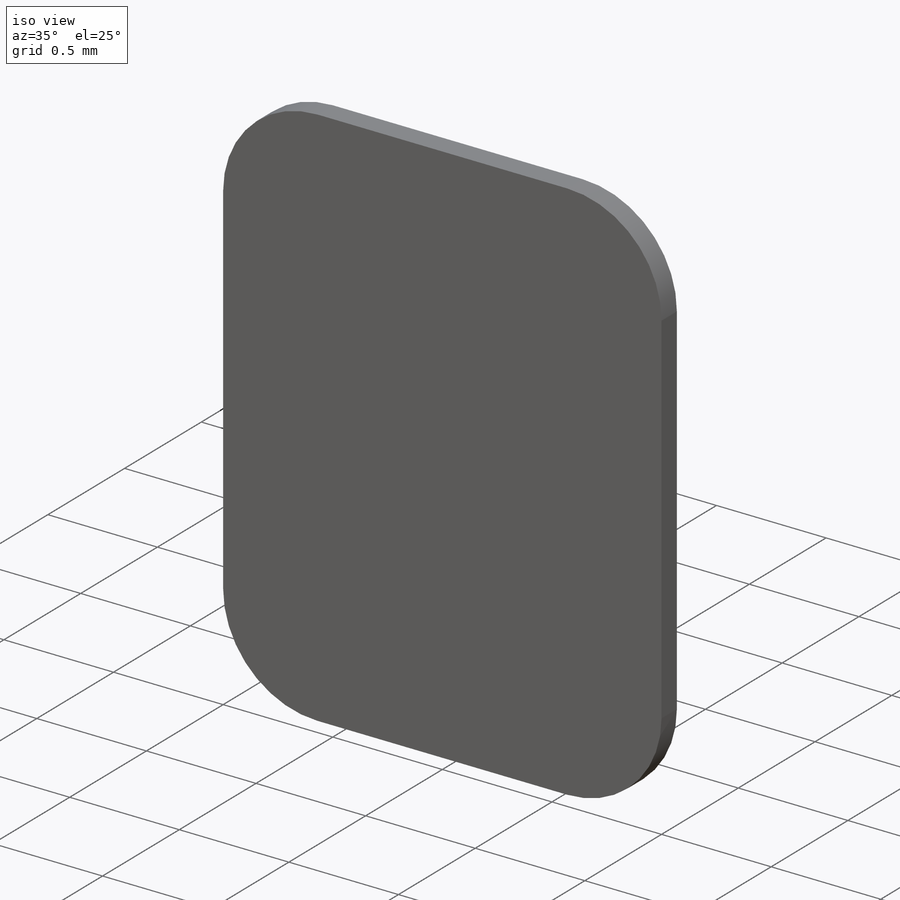
[diagram: iso view]
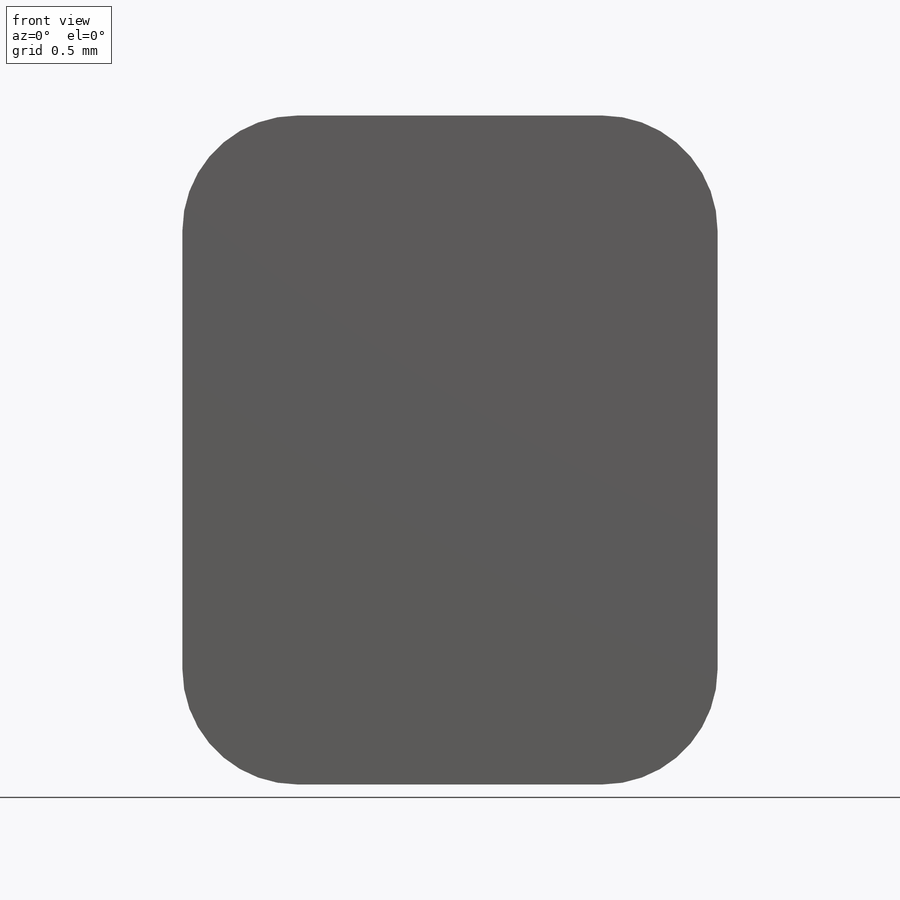
[diagram: front view]
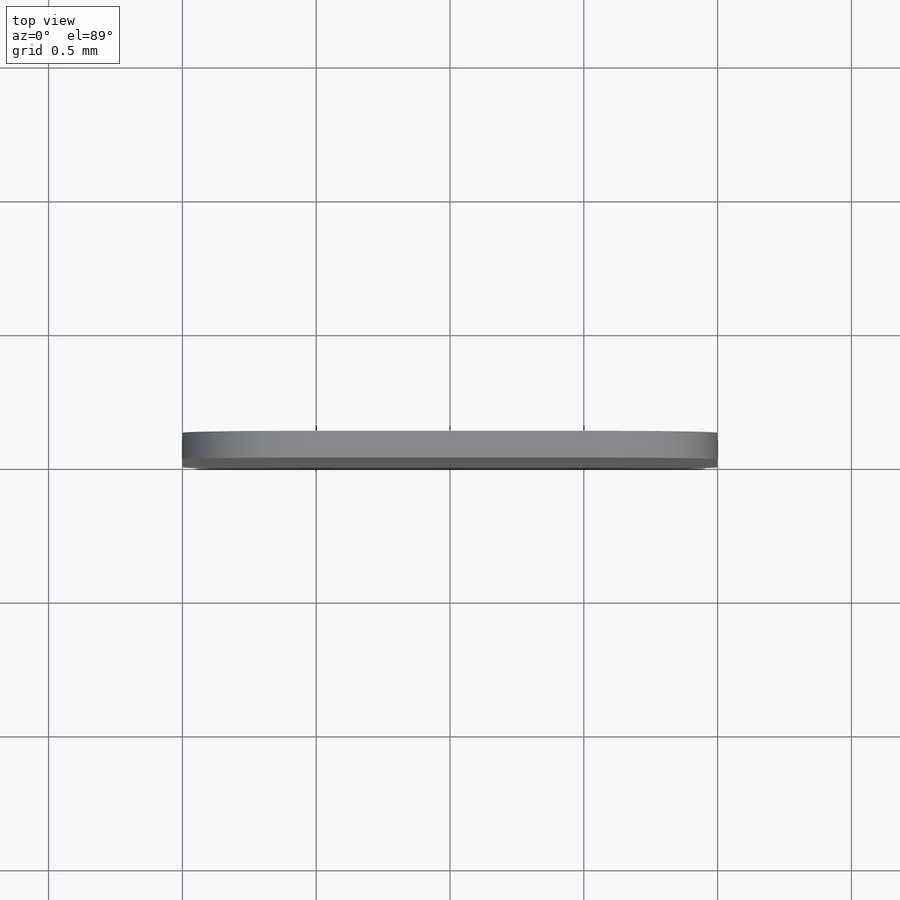
[diagram: top view]
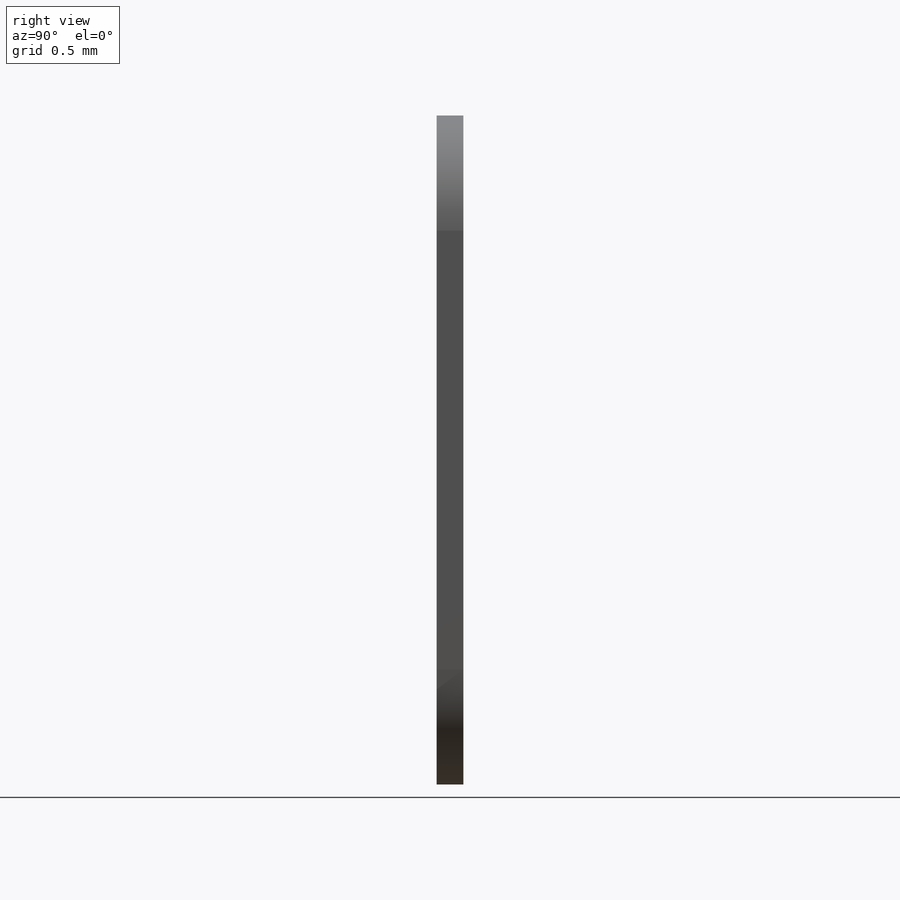
[diagram: right view]
SOLIDWORKS PART (.sldprt)
format: sldprt  version: not decoded by parser v0  size: 583,168 bytes
history: native  units: mm
features: sketch x10, extrude x8, plane x2, material x1, cut_revolve x1, revolve x1 (+12 scaffold rows collapsed)
feature tree (35):
  scaffold x12  (default folders/planes/origin — collapsed)
  material  "Material <not specified>"
  plane  "mating-plane"
  sketch  "Sketch9"  dims[c1.D1=~2.117356mm c1.D2=~2.748293mm c2.D1=~1.015626mm c3.D1=135.0deg c4.D1=2.54mm c4.D2=1.8mm c5.D1=2.5mm]
  extrude  "landing-pad-2.5x2"  Depth=0.1mm
  sketch  "Sketch18"  dims[c1.D1=~2.117356mm c1.D2=~2.748293mm c2.D1=~1.015626mm c3.D1=135.0deg c4.D1=2.54mm c4.D2=1.8mm c5.D1=2.0mm]
  extrude  "landing-pad-2x2"  Depth=0.1mm
  sketch  "Sketch3"  dims[D1=~0.576616mm]
  extrude  "pin-body"  Depth=2.93mm
  sketch  "Sketch11"  dims[D1=0.53mm]
  cut_revolve  "dome"  Angle=360deg
  sketch  "Sketch17"  dims[D1=~3.116635mm D2=~14.442511mm]
  extrude  "fake-thing"  Depth=0.7mm
  sketch  "Sketch8"  dims[D1=~0.326879mm]
  extrude  "body-front"  Depth=3.81mm
  sketch  "Sketch15"  dims[D1=1.07mm]
  extrude  "plug"  Depth=0.75mm
  sketch  "Sketch13"  dims[D1=~1.497987mm]
  extrude  "body-back"  Depth=2mm
  sketch  "Sketch14"  dims[D1=~1.405689mm]
  extrude  "flange"  Depth=0.25mm
  plane  "PCB-edge"
  sketch  "Sketch16"  dims[D1=~0.078934mm]
  revolve  "rib"  Angle=360deg
decode coverage: 20 of 20 modeling features carry decoded parameters
note: ~ marks probable driven/reference dimensions
note: suppression state not decoded; provenance and decode notes live in map.json
